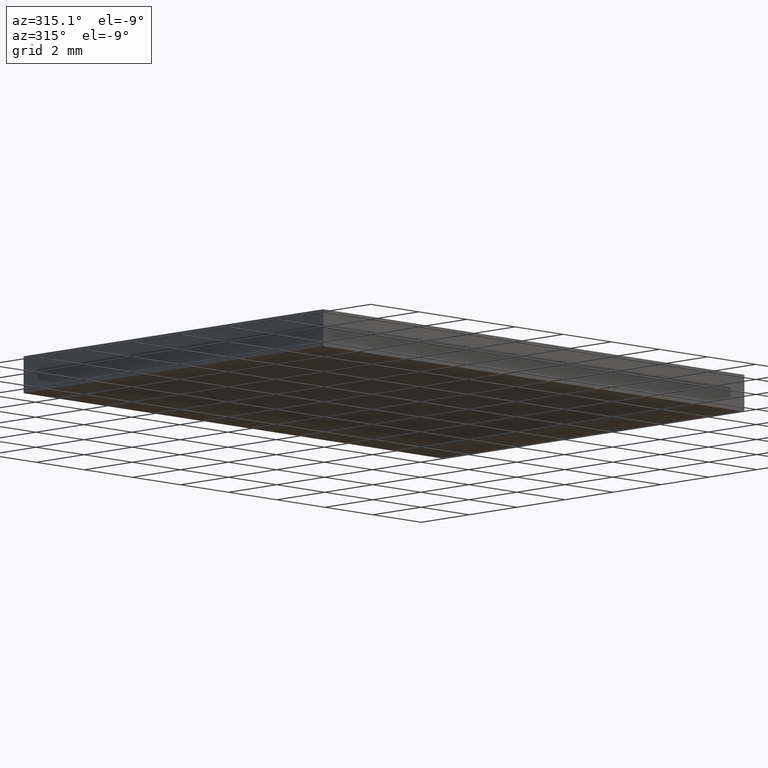
[diagram: clean part render]
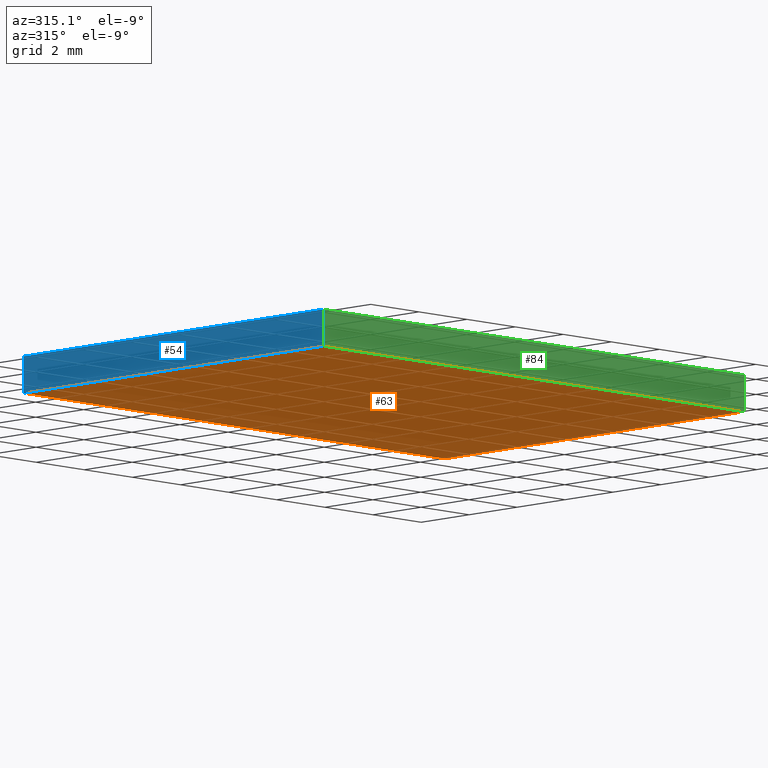
[diagram: same view with three faces highlighted in distinct colors, each labeled with its STEP entity id]
A machine part, auxiliary view with three faces highlighted in distinct colors.
Their STEP definitions:

[orange] entity #63 — the highlighted planar face has unit normal (0, 0, -1).
#1 = DIRECTION ( 'NONE',  ( -0.000000000000000000, -1.000000000000000000, -0.000000000000000000 ) ) ;
#2 = LINE ( 'NONE', #178, #188 ) ;
#9 = EDGE_CURVE ( 'NONE', #151, #147, #141, .T. ) ;
#37 = DIRECTION ( 'NONE',  ( 0.000000000000000000, 1.000000000000000000, 0.000000000000000000 ) ) ;
#42 = PLANE ( 'NONE',  #108 ) ;
#44 = ORIENTED_EDGE ( 'NONE', *, *, #48, .F. ) ;
#48 = EDGE_CURVE ( 'NONE', #147, #164, #67, .T. ) ;
#50 = CARTESIAN_POINT ( 'NONE',  ( 0.000000000000000000, 0.000000000000000000, 0.000000000000000000 ) ) ;
#52 = CARTESIAN_POINT ( 'NONE',  ( 17.50000000000000000, 0.000000000000000000, 0.000000000000000000 ) ) ;
#58 = DIRECTION ( 'NONE',  ( 0.000000000000000000, 0.000000000000000000, -1.000000000000000000 ) ) ;
#63 = ADVANCED_FACE ( 'NONE', ( #74 ), #42, .T. ) ;
#67 = LINE ( 'NONE', #131, #81 ) ;
#70 = ORIENTED_EDGE ( 'NONE', *, *, #9, .F. ) ;
#72 = LINE ( 'NONE', #116, #109 ) ;
#73 = ORIENTED_EDGE ( 'NONE', *, *, #175, .F. ) ;
#74 = FACE_OUTER_BOUND ( 'NONE', #192, .T. ) ;
#81 = VECTOR ( 'NONE', #191, 1000.000000000000000 ) ;
#89 = ORIENTED_EDGE ( 'NONE', *, *, #160, .F. ) ;
#99 = DIRECTION ( 'NONE',  ( -1.000000000000000000, -0.000000000000000000, -0.000000000000000000 ) ) ;
#108 = AXIS2_PLACEMENT_3D ( 'NONE', #197, #58, #154 ) ;
#109 = VECTOR ( 'NONE', #99, 1000.000000000000000 ) ;
#116 = CARTESIAN_POINT ( 'NONE',  ( 0.000000000000000000, 12.50000000000000000, 0.000000000000000000 ) ) ;
#128 = VECTOR ( 'NONE', #1, 1000.000000000000000 ) ;
#131 = CARTESIAN_POINT ( 'NONE',  ( 0.000000000000000000, 0.000000000000000000, 0.000000000000000000 ) ) ;
#134 = CARTESIAN_POINT ( 'NONE',  ( 0.000000000000000000, 0.000000000000000000, 0.000000000000000000 ) ) ;
#141 = LINE ( 'NONE', #50, #128 ) ;
#143 = CARTESIAN_POINT ( 'NONE',  ( 17.50000000000000000, 12.50000000000000000, 0.000000000000000000 ) ) ;
#144 = VERTEX_POINT ( 'NONE', #143 ) ;
#147 = VERTEX_POINT ( 'NONE', #134 ) ;
#151 = VERTEX_POINT ( 'NONE', #193 ) ;
#154 = DIRECTION ( 'NONE',  ( -1.000000000000000000, 0.000000000000000000, -0.000000000000000000 ) ) ;
#160 = EDGE_CURVE ( 'NONE', #144, #151, #72, .T. ) ;
#164 = VERTEX_POINT ( 'NONE', #52 ) ;
#175 = EDGE_CURVE ( 'NONE', #164, #144, #2, .T. ) ;
#178 = CARTESIAN_POINT ( 'NONE',  ( 17.50000000000000000, 0.000000000000000000, 0.000000000000000000 ) ) ;
#188 = VECTOR ( 'NONE', #37, 1000.000000000000000 ) ;
#191 = DIRECTION ( 'NONE',  ( 1.000000000000000000, 0.000000000000000000, 0.000000000000000000 ) ) ;
#192 = EDGE_LOOP ( 'NONE', ( #70, #89, #73, #44 ) ) ;
#193 = CARTESIAN_POINT ( 'NONE',  ( 0.000000000000000000, 12.50000000000000000, 0.000000000000000000 ) ) ;
#197 = CARTESIAN_POINT ( 'NONE',  ( 0.000000000000000000, 0.000000000000000000, 0.000000000000000000 ) ) ;

[blue] entity #54 — the highlighted planar face has unit normal (1, 0, 0).
#1 = DIRECTION ( 'NONE',  ( -0.000000000000000000, -1.000000000000000000, -0.000000000000000000 ) ) ;
#7 = LINE ( 'NONE', #104, #28 ) ;
#9 = EDGE_CURVE ( 'NONE', #151, #147, #141, .T. ) ;
#14 = EDGE_CURVE ( 'NONE', #77, #133, #7, .T. ) ;
#24 = ORIENTED_EDGE ( 'NONE', *, *, #14, .F. ) ;
#27 = ORIENTED_EDGE ( 'NONE', *, *, #96, .F. ) ;
#28 = VECTOR ( 'NONE', #136, 1000.000000000000000 ) ;
#40 = FACE_OUTER_BOUND ( 'NONE', #183, .T. ) ;
#47 = CARTESIAN_POINT ( 'NONE',  ( 0.000000000000000000, 0.000000000000000000, 1.100000000000000089 ) ) ;
#50 = CARTESIAN_POINT ( 'NONE',  ( 0.000000000000000000, 0.000000000000000000, 0.000000000000000000 ) ) ;
#54 = ADVANCED_FACE ( 'NONE', ( #40 ), #101, .F. ) ;
#71 = CARTESIAN_POINT ( 'NONE',  ( 0.000000000000000000, 0.000000000000000000, 1.100000000000000089 ) ) ;
#77 = VERTEX_POINT ( 'NONE', #112 ) ;
#79 = DIRECTION ( 'NONE',  ( -0.000000000000000000, -0.000000000000000000, -1.000000000000000000 ) ) ;
#87 = DIRECTION ( 'NONE',  ( 1.000000000000000000, 0.000000000000000000, 0.000000000000000000 ) ) ;
#88 = ORIENTED_EDGE ( 'NONE', *, *, #157, .T. ) ;
#96 = EDGE_CURVE ( 'NONE', #133, #147, #189, .T. ) ;
#100 = ORIENTED_EDGE ( 'NONE', *, *, #9, .T. ) ;
#101 = PLANE ( 'NONE',  #196 ) ;
#104 = CARTESIAN_POINT ( 'NONE',  ( 0.000000000000000000, 0.000000000000000000, 1.100000000000000089 ) ) ;
#111 = CARTESIAN_POINT ( 'NONE',  ( 0.000000000000000000, 12.50000000000000000, 1.100000000000000089 ) ) ;
#112 = CARTESIAN_POINT ( 'NONE',  ( 0.000000000000000000, 12.50000000000000000, 1.100000000000000089 ) ) ;
#113 = DIRECTION ( 'NONE',  ( -0.000000000000000000, -0.000000000000000000, -1.000000000000000000 ) ) ;
#118 = VECTOR ( 'NONE', #79, 1000.000000000000000 ) ;
#128 = VECTOR ( 'NONE', #1, 1000.000000000000000 ) ;
#133 = VERTEX_POINT ( 'NONE', #71 ) ;
#134 = CARTESIAN_POINT ( 'NONE',  ( 0.000000000000000000, 0.000000000000000000, 0.000000000000000000 ) ) ;
#136 = DIRECTION ( 'NONE',  ( -0.000000000000000000, -1.000000000000000000, -0.000000000000000000 ) ) ;
#141 = LINE ( 'NONE', #50, #128 ) ;
#145 = DIRECTION ( 'NONE',  ( 0.000000000000000000, 0.000000000000000000, -1.000000000000000000 ) ) ;
#147 = VERTEX_POINT ( 'NONE', #134 ) ;
#151 = VERTEX_POINT ( 'NONE', #193 ) ;
#157 = EDGE_CURVE ( 'NONE', #77, #151, #182, .T. ) ;
#173 = VECTOR ( 'NONE', #113, 1000.000000000000000 ) ;
#181 = CARTESIAN_POINT ( 'NONE',  ( 0.000000000000000000, 0.000000000000000000, 1.100000000000000089 ) ) ;
#182 = LINE ( 'NONE', #111, #173 ) ;
#183 = EDGE_LOOP ( 'NONE', ( #100, #27, #24, #88 ) ) ;
#189 = LINE ( 'NONE', #47, #118 ) ;
#193 = CARTESIAN_POINT ( 'NONE',  ( 0.000000000000000000, 12.50000000000000000, 0.000000000000000000 ) ) ;
#196 = AXIS2_PLACEMENT_3D ( 'NONE', #181, #87, #145 ) ;

[green] entity #84 — the highlighted planar face has unit normal (0, 1, 0).
#3 = VERTEX_POINT ( 'NONE', #122 ) ;
#13 = CARTESIAN_POINT ( 'NONE',  ( 0.000000000000000000, 0.000000000000000000, 1.100000000000000089 ) ) ;
#26 = EDGE_CURVE ( 'NONE', #133, #3, #82, .T. ) ;
#41 = EDGE_LOOP ( 'NONE', ( #167, #185, #57, #121 ) ) ;
#47 = CARTESIAN_POINT ( 'NONE',  ( 0.000000000000000000, 0.000000000000000000, 1.100000000000000089 ) ) ;
#48 = EDGE_CURVE ( 'NONE', #147, #164, #67, .T. ) ;
#52 = CARTESIAN_POINT ( 'NONE',  ( 17.50000000000000000, 0.000000000000000000, 0.000000000000000000 ) ) ;
#57 = ORIENTED_EDGE ( 'NONE', *, *, #26, .F. ) ;
#62 = PLANE ( 'NONE',  #180 ) ;
#67 = LINE ( 'NONE', #131, #81 ) ;
#68 = DIRECTION ( 'NONE',  ( -0.000000000000000000, -0.000000000000000000, -1.000000000000000000 ) ) ;
#71 = CARTESIAN_POINT ( 'NONE',  ( 0.000000000000000000, 0.000000000000000000, 1.100000000000000089 ) ) ;
#79 = DIRECTION ( 'NONE',  ( -0.000000000000000000, -0.000000000000000000, -1.000000000000000000 ) ) ;
#81 = VECTOR ( 'NONE', #191, 1000.000000000000000 ) ;
#82 = LINE ( 'NONE', #165, #152 ) ;
#84 = ADVANCED_FACE ( 'NONE', ( #138 ), #62, .F. ) ;
#90 = VECTOR ( 'NONE', #68, 1000.000000000000000 ) ;
#96 = EDGE_CURVE ( 'NONE', #133, #147, #189, .T. ) ;
#98 = CARTESIAN_POINT ( 'NONE',  ( 17.50000000000000000, 0.000000000000000000, 1.100000000000000089 ) ) ;
#115 = LINE ( 'NONE', #98, #90 ) ;
#118 = VECTOR ( 'NONE', #79, 1000.000000000000000 ) ;
#121 = ORIENTED_EDGE ( 'NONE', *, *, #96, .T. ) ;
#122 = CARTESIAN_POINT ( 'NONE',  ( 17.50000000000000000, 0.000000000000000000, 1.100000000000000089 ) ) ;
#123 = EDGE_CURVE ( 'NONE', #3, #164, #115, .T. ) ;
#131 = CARTESIAN_POINT ( 'NONE',  ( 0.000000000000000000, 0.000000000000000000, 0.000000000000000000 ) ) ;
#133 = VERTEX_POINT ( 'NONE', #71 ) ;
#134 = CARTESIAN_POINT ( 'NONE',  ( 0.000000000000000000, 0.000000000000000000, 0.000000000000000000 ) ) ;
#138 = FACE_OUTER_BOUND ( 'NONE', #41, .T. ) ;
#147 = VERTEX_POINT ( 'NONE', #134 ) ;
#152 = VECTOR ( 'NONE', #162, 1000.000000000000000 ) ;
#162 = DIRECTION ( 'NONE',  ( 1.000000000000000000, 0.000000000000000000, 0.000000000000000000 ) ) ;
#164 = VERTEX_POINT ( 'NONE', #52 ) ;
#165 = CARTESIAN_POINT ( 'NONE',  ( 0.000000000000000000, 0.000000000000000000, 1.100000000000000089 ) ) ;
#167 = ORIENTED_EDGE ( 'NONE', *, *, #48, .T. ) ;
#171 = DIRECTION ( 'NONE',  ( 0.000000000000000000, -0.000000000000000000, 1.000000000000000000 ) ) ;
#180 = AXIS2_PLACEMENT_3D ( 'NONE', #13, #201, #171 ) ;
#185 = ORIENTED_EDGE ( 'NONE', *, *, #123, .F. ) ;
#189 = LINE ( 'NONE', #47, #118 ) ;
#191 = DIRECTION ( 'NONE',  ( 1.000000000000000000, 0.000000000000000000, 0.000000000000000000 ) ) ;
#201 = DIRECTION ( 'NONE',  ( 0.000000000000000000, 1.000000000000000000, 0.000000000000000000 ) ) ;